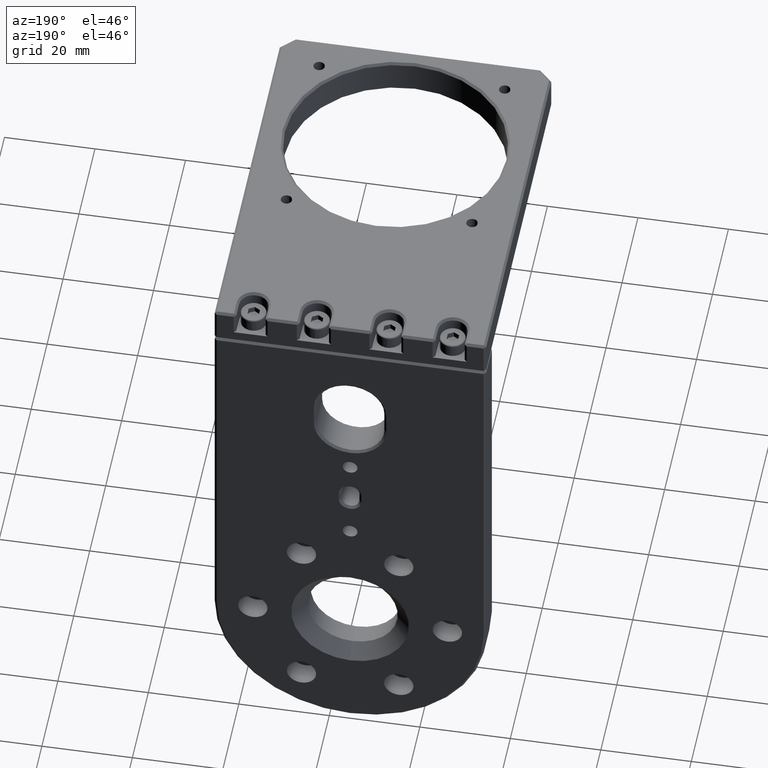
[diagram: clean part render]
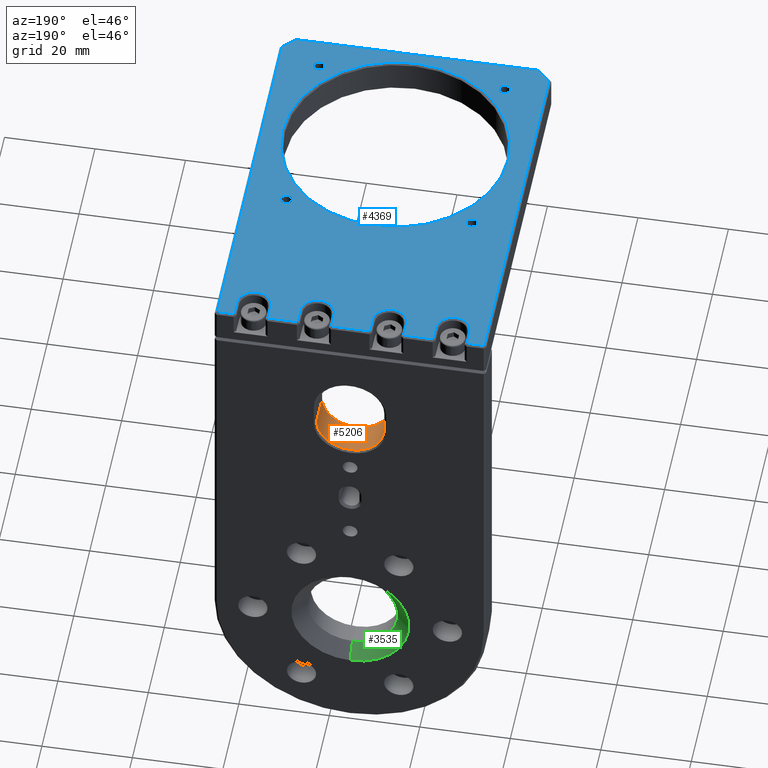
[diagram: same view with three faces highlighted in distinct colors, each labeled with its STEP entity id]
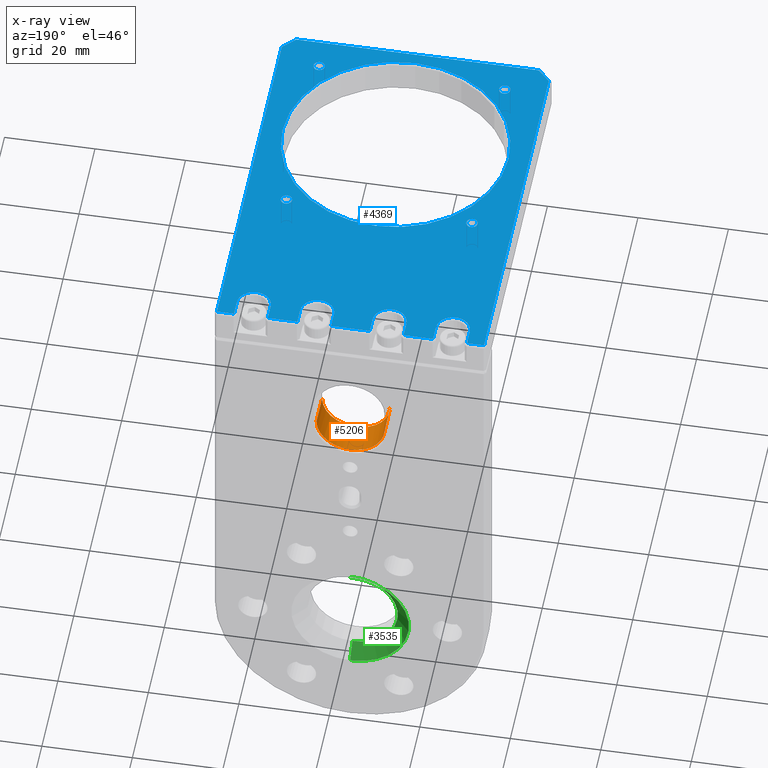
[diagram: x-ray of the same camera — body ghosted, the three highlighted faces saturated]
A machine part, auxiliary view with three faces highlighted in distinct colors.
The next image is the same camera in x-ray (body ghosted, the three faces saturated) — at least one of them is partly hidden behind the body in this view.
Their STEP definitions:

[orange] entity #5206 — the highlighted cylindrical surface (edge-blend (fillet) strip) has radius 7.5 mm, axis along (0, -1, -0).
#134 = CARTESIAN_POINT ( 'NONE',  ( 135.1860777088456018, 141.2181840001565831, 163.4764618752672050 ) ) ;
#247 = AXIS2_PLACEMENT_3D ( 'NONE', #6578, #3546, #3625 ) ;
#368 = ORIENTED_EDGE ( 'NONE', *, *, #411, .T. ) ;
#411 = EDGE_CURVE ( 'NONE', #4521, #592, #4626, .T. ) ;
#592 = VERTEX_POINT ( 'NONE', #2490 ) ;
#736 = AXIS2_PLACEMENT_3D ( 'NONE', #134, #3818, #3661 ) ;
#804 = CARTESIAN_POINT ( 'NONE',  ( 135.1860777088456018, 140.7181840001565263, 163.4764618752672050 ) ) ;
#1297 = CARTESIAN_POINT ( 'NONE',  ( 127.6860777088456018, 141.2181840001565547, 163.4764618752672902 ) ) ;
#1410 = DIRECTION ( 'NONE',  ( 3.491481338843133355E-15, -1.000000000000000000, -3.657132581846951845E-29 ) ) ;
#1940 = EDGE_CURVE ( 'NONE', #592, #6217, #3490, .T. ) ;
#2082 = ORIENTED_EDGE ( 'NONE', *, *, #1940, .T. ) ;
#2099 = DIRECTION ( 'NONE',  ( 3.491481338843133355E-15, -1.000000000000000000, -3.657132581846951845E-29 ) ) ;
#2121 = ORIENTED_EDGE ( 'NONE', *, *, #4046, .T. ) ;
#2490 = CARTESIAN_POINT ( 'NONE',  ( 135.1860777088455166, 140.7181840001565263, 155.9764618752672050 ) ) ;
#2656 = CARTESIAN_POINT ( 'NONE',  ( 142.6860777088456018, 141.2181840001566115, 163.4764618752671197 ) ) ;
#2698 = VECTOR ( 'NONE', #2099, 1000.000000000000000 ) ;
#2742 = DIRECTION ( 'NONE',  ( 1.110223024625155436E-14, 0.0000000000000000000, 1.000000000000000000 ) ) ;
#2870 = EDGE_CURVE ( 'NONE', #6217, #7251, #6235, .T. ) ;
#3429 = CARTESIAN_POINT ( 'NONE',  ( 142.6860777088456018, 133.7181840001566115, 163.4764618752671197 ) ) ;
#3490 = CIRCLE ( 'NONE', #4258, 7.500000000000007105 ) ;
#3546 = DIRECTION ( 'NONE',  ( 3.491481338843133355E-15, -1.000000000000000000, -3.657132581846951845E-29 ) ) ;
#3625 = DIRECTION ( 'NONE',  ( 1.110223024625155436E-14, 0.0000000000000000000, 1.000000000000000000 ) ) ;
#3661 = DIRECTION ( 'NONE',  ( 1.110223024625155436E-14, 0.0000000000000000000, 1.000000000000000000 ) ) ;
#3715 = AXIS2_PLACEMENT_3D ( 'NONE', #3930, #5678, #7528 ) ;
#3818 = DIRECTION ( 'NONE',  ( 3.491481338843133355E-15, -1.000000000000000000, -3.657132581846951845E-29 ) ) ;
#3919 = CARTESIAN_POINT ( 'NONE',  ( 127.6860777088456302, 133.7181840001565547, 163.4764618752672902 ) ) ;
#3930 = CARTESIAN_POINT ( 'NONE',  ( 135.1860777088456018, 140.7181840001565263, 163.4764618752672050 ) ) ;
#4046 = EDGE_CURVE ( 'NONE', #7251, #6625, #7189, .T. ) ;
#4112 = ORIENTED_EDGE ( 'NONE', *, *, #6902, .F. ) ;
#4258 = AXIS2_PLACEMENT_3D ( 'NONE', #804, #5799, #2742 ) ;
#4521 = VERTEX_POINT ( 'NONE', #6758 ) ;
#4523 = ORIENTED_EDGE ( 'NONE', *, *, #2870, .T. ) ;
#4626 = CIRCLE ( 'NONE', #3715, 7.500000000000007105 ) ;
#5146 = LINE ( 'NONE', #2656, #2698 ) ;
#5206 = ADVANCED_FACE ( 'NONE', ( #7499 ), #5643, .F. ) ;
#5643 = CYLINDRICAL_SURFACE ( 'NONE', #736, 7.500000000000007105 ) ;
#5678 = DIRECTION ( 'NONE',  ( -3.491481338843133355E-15, 1.000000000000000000, 3.657132581846951845E-29 ) ) ;
#5799 = DIRECTION ( 'NONE',  ( -3.491481338843133355E-15, 1.000000000000000000, 3.657132581846951845E-29 ) ) ;
#5847 = EDGE_LOOP ( 'NONE', ( #4523, #2121, #4112, #368, #2082 ) ) ;
#6217 = VERTEX_POINT ( 'NONE', #7519 ) ;
#6235 = LINE ( 'NONE', #1297, #7487 ) ;
#6578 = CARTESIAN_POINT ( 'NONE',  ( 135.1860777088456302, 133.7181840001565831, 163.4764618752672050 ) ) ;
#6625 = VERTEX_POINT ( 'NONE', #3429 ) ;
#6758 = CARTESIAN_POINT ( 'NONE',  ( 142.6860777088456018, 140.7181840001565547, 163.4764618752671197 ) ) ;
#6902 = EDGE_CURVE ( 'NONE', #4521, #6625, #5146, .T. ) ;
#7189 = CIRCLE ( 'NONE', #247, 7.500000000000007105 ) ;
#7251 = VERTEX_POINT ( 'NONE', #3919 ) ;
#7487 = VECTOR ( 'NONE', #1410, 1000.000000000000000 ) ;
#7499 = FACE_OUTER_BOUND ( 'NONE', #5847, .T. ) ;
#7519 = CARTESIAN_POINT ( 'NONE',  ( 127.6860777088456018, 140.7181840001564979, 163.4764618752672902 ) ) ;
#7528 = DIRECTION ( 'NONE',  ( 1.110223024625155436E-14, 0.0000000000000000000, 1.000000000000000000 ) ) ;

[blue] entity #4369 — the highlighted planar face has unit normal (0, 0, -1).
#13 = EDGE_CURVE ( 'NONE', #2300, #1599, #512, .T. ) ;
#84 = VERTEX_POINT ( 'NONE', #5887 ) ;
#91 = ORIENTED_EDGE ( 'NONE', *, *, #6144, .T. ) ;
#220 = CARTESIAN_POINT ( 'NONE',  ( 113.4299810544346201, 63.71208734574615562, 193.9764618752686545 ) ) ;
#232 = VERTEX_POINT ( 'NONE', #7287 ) ;
#243 = DIRECTION ( 'NONE',  ( -0.0000000000000000000, -0.0000000000000000000, 1.000000000000000000 ) ) ;
#251 = CARTESIAN_POINT ( 'NONE',  ( 114.6799810544345206, 104.7242806545659022, 193.9764618752686545 ) ) ;
#271 = EDGE_LOOP ( 'NONE', ( #7745, #6990 ) ) ;
#285 = CARTESIAN_POINT ( 'NONE',  ( 127.1860777088444365, 137.2181840001561000, 193.9764618752686545 ) ) ;
#294 = DIRECTION ( 'NONE',  ( 1.000000000000000000, 0.0000000000000000000, 0.0000000000000000000 ) ) ;
#313 = CARTESIAN_POINT ( 'NONE',  ( 109.4360777088444365, 140.7181840001560715, 193.9764618752686545 ) ) ;
#331 = VERTEX_POINT ( 'NONE', #5103 ) ;
#389 = AXIS2_PLACEMENT_3D ( 'NONE', #4611, #3882, #5222 ) ;
#406 = CARTESIAN_POINT ( 'NONE',  ( 135.1860777088444365, 98.71818400015608574, 193.9764618752686545 ) ) ;
#408 = LINE ( 'NONE', #5432, #3083 ) ;
#421 = AXIS2_PLACEMENT_3D ( 'NONE', #5757, #4428, #2709 ) ;
#512 = CIRCLE ( 'NONE', #4226, 1.249999999999987121 ) ;
#532 = CARTESIAN_POINT ( 'NONE',  ( 161.9789709276578549, 56.71818400015609285, 193.9764618752686545 ) ) ;
#556 = VECTOR ( 'NONE', #6757, 1000.000000000000000 ) ;
#558 = DIRECTION ( 'NONE',  ( -1.000000000000000000, 0.0000000000000000000, 0.0000000000000000000 ) ) ;
#571 = EDGE_CURVE ( 'NONE', #2174, #796, #3849, .T. ) ;
#596 = CARTESIAN_POINT ( 'NONE',  ( 116.9360777088444223, 98.71818400015608574, 193.9764618752686545 ) ) ;
#602 = EDGE_LOOP ( 'NONE', ( #2458, #2000 ) ) ;
#618 = LINE ( 'NONE', #2511, #6010 ) ;
#660 = LINE ( 'NONE', #3107, #3048 ) ;
#668 = ORIENTED_EDGE ( 'NONE', *, *, #2808, .T. ) ;
#718 = CARTESIAN_POINT ( 'NONE',  ( 139.4360777088444081, 140.7181840001560715, 193.9764618752686545 ) ) ;
#796 = VERTEX_POINT ( 'NONE', #2368 ) ;
#843 = ORIENTED_EDGE ( 'NONE', *, *, #7199, .T. ) ;
#877 = AXIS2_PLACEMENT_3D ( 'NONE', #5740, #3801, #4448 ) ;
#881 = CARTESIAN_POINT ( 'NONE',  ( 164.8325243182511599, 59.57173739074936947, 193.9764618752686545 ) ) ;
#892 = VERTEX_POINT ( 'NONE', #7382 ) ;
#996 = DIRECTION ( 'NONE',  ( -0.0000000000000000000, -0.0000000000000000000, 1.000000000000000000 ) ) ;
#1006 = FACE_BOUND ( 'NONE', #5197, .T. ) ;
#1133 = LINE ( 'NONE', #1660, #6872 ) ;
#1138 = ORIENTED_EDGE ( 'NONE', *, *, #3012, .T. ) ;
#1160 = VERTEX_POINT ( 'NONE', #1507 ) ;
#1269 = VECTOR ( 'NONE', #3916, 1000.000000000000000 ) ;
#1289 = CARTESIAN_POINT ( 'NONE',  ( 135.1860777088444365, 140.7181840001560715, 193.9764618752686545 ) ) ;
#1314 = ORIENTED_EDGE ( 'NONE', *, *, #5021, .T. ) ;
#1333 = ORIENTED_EDGE ( 'NONE', *, *, #1569, .T. ) ;
#1342 = EDGE_LOOP ( 'NONE', ( #4061, #4686 ) ) ;
#1418 = ORIENTED_EDGE ( 'NONE', *, *, #3211, .T. ) ;
#1423 = DIRECTION ( 'NONE',  ( -0.0000000000000000000, -0.0000000000000000000, 1.000000000000000000 ) ) ;
#1437 = CARTESIAN_POINT ( 'NONE',  ( 156.9421743632543667, 63.71208734574625510, 193.9764618752686545 ) ) ;
#1507 = CARTESIAN_POINT ( 'NONE',  ( 146.9360777088444365, 140.7181840001560715, 193.9764618752686545 ) ) ;
#1517 = CARTESIAN_POINT ( 'NONE',  ( 105.6860777088444507, 59.42529078134266740, 193.9764618752686545 ) ) ;
#1524 = VECTOR ( 'NONE', #5784, 1000.000000000000000 ) ;
#1569 = EDGE_CURVE ( 'NONE', #6057, #2536, #1133, .T. ) ;
#1570 = ORIENTED_EDGE ( 'NONE', *, *, #2622, .T. ) ;
#1586 = DIRECTION ( 'NONE',  ( -0.0000000000000000000, -0.0000000000000000000, 1.000000000000000000 ) ) ;
#1588 = VECTOR ( 'NONE', #5429, 1000.000000000000000 ) ;
#1599 = VERTEX_POINT ( 'NONE', #4751 ) ;
#1613 = FACE_BOUND ( 'NONE', #4813, .T. ) ;
#1617 = VERTEX_POINT ( 'NONE', #532 ) ;
#1660 = CARTESIAN_POINT ( 'NONE',  ( 135.1860777088444365, 140.7181840001560715, 193.9764618752686545 ) ) ;
#1712 = VECTOR ( 'NONE', #7323, 1000.000000000000000 ) ;
#1772 = LINE ( 'NONE', #2420, #1712 ) ;
#1795 = EDGE_CURVE ( 'NONE', #5462, #3796, #1977, .T. ) ;
#1806 = VECTOR ( 'NONE', #3725, 1000.000000000000000 ) ;
#1837 = VERTEX_POINT ( 'NONE', #5147 ) ;
#1841 = EDGE_CURVE ( 'NONE', #5848, #1837, #5808, .T. ) ;
#1849 = CIRCLE ( 'NONE', #4015, 3.750000000000003553 ) ;
#1851 = CARTESIAN_POINT ( 'NONE',  ( 160.9360777088444365, 98.71818400015608574, 193.9764618752686545 ) ) ;
#1953 = AXIS2_PLACEMENT_3D ( 'NONE', #7041, #5063, #2013 ) ;
#1964 = CIRCLE ( 'NONE', #7743, 1.249999999999973355 ) ;
#1976 = LINE ( 'NONE', #7964, #5369 ) ;
#1977 = LINE ( 'NONE', #3102, #5674 ) ;
#2000 = ORIENTED_EDGE ( 'NONE', *, *, #1841, .F. ) ;
#2013 = DIRECTION ( 'NONE',  ( 1.000000000000000000, 0.0000000000000000000, 0.0000000000000000000 ) ) ;
#2044 = VECTOR ( 'NONE', #2991, 1000.000000000000000 ) ;
#2057 = DIRECTION ( 'NONE',  ( 1.000000000000000000, 0.0000000000000000000, 0.0000000000000000000 ) ) ;
#2168 = CARTESIAN_POINT ( 'NONE',  ( 155.6921743632543951, 63.71208734574625510, 193.9764618752686545 ) ) ;
#2174 = VERTEX_POINT ( 'NONE', #1437 ) ;
#2192 = CARTESIAN_POINT ( 'NONE',  ( 164.6860777088444081, 140.7181840001560715, 193.9764618752686545 ) ) ;
#2222 = DIRECTION ( 'NONE',  ( 0.7071067811865459074, -0.7071067811865491270, 0.0000000000000000000 ) ) ;
#2240 = CARTESIAN_POINT ( 'NONE',  ( 123.4360777088444365, 140.7181840001560715, 193.9764618752686545 ) ) ;
#2257 = DIRECTION ( 'NONE',  ( 0.0000000000000000000, 0.0000000000000000000, -1.000000000000000000 ) ) ;
#2262 = VERTEX_POINT ( 'NONE', #313 ) ;
#2300 = VERTEX_POINT ( 'NONE', #4225 ) ;
#2301 = ORIENTED_EDGE ( 'NONE', *, *, #5991, .T. ) ;
#2368 = CARTESIAN_POINT ( 'NONE',  ( 154.4421743632544235, 63.71208734574625510, 193.9764618752686545 ) ) ;
#2420 = CARTESIAN_POINT ( 'NONE',  ( 130.9360777088444365, 98.71818400015608574, 193.9764618752686545 ) ) ;
#2425 = AXIS2_PLACEMENT_3D ( 'NONE', #2168, #996, #2922 ) ;
#2458 = ORIENTED_EDGE ( 'NONE', *, *, #2673, .F. ) ;
#2511 = CARTESIAN_POINT ( 'NONE',  ( 146.9360777088444365, 98.71818400015608574, 193.9764618752686545 ) ) ;
#2536 = VERTEX_POINT ( 'NONE', #6893 ) ;
#2541 = EDGE_CURVE ( 'NONE', #7703, #232, #7737, .T. ) ;
#2579 = DIRECTION ( 'NONE',  ( 0.0000000000000000000, -1.000000000000000000, 0.0000000000000000000 ) ) ;
#2617 = DIRECTION ( 'NONE',  ( -1.000000000000000000, 0.0000000000000000000, 0.0000000000000000000 ) ) ;
#2622 = EDGE_CURVE ( 'NONE', #2760, #6057, #4587, .T. ) ;
#2658 = CARTESIAN_POINT ( 'NONE',  ( 114.6799810544346059, 63.71208734574615562, 193.9764618752686545 ) ) ;
#2665 = DIRECTION ( 'NONE',  ( 1.000000000000000000, 0.0000000000000000000, 0.0000000000000000000 ) ) ;
#2673 = EDGE_CURVE ( 'NONE', #1837, #5848, #1964, .T. ) ;
#2694 = ORIENTED_EDGE ( 'NONE', *, *, #5067, .T. ) ;
#2709 = DIRECTION ( 'NONE',  ( 1.000000000000000000, 0.0000000000000000000, 0.0000000000000000000 ) ) ;
#2716 = ORIENTED_EDGE ( 'NONE', *, *, #5321, .T. ) ;
#2760 = VERTEX_POINT ( 'NONE', #3022 ) ;
#2799 = AXIS2_PLACEMENT_3D ( 'NONE', #406, #2257, #4699 ) ;
#2808 = EDGE_CURVE ( 'NONE', #2536, #331, #1772, .T. ) ;
#2838 = VERTEX_POINT ( 'NONE', #4866 ) ;
#2894 = CIRCLE ( 'NONE', #3910, 3.750000000000003553 ) ;
#2914 = CARTESIAN_POINT ( 'NONE',  ( 116.9360777088444223, 137.2181840001561000, 193.9764618752686545 ) ) ;
#2922 = DIRECTION ( 'NONE',  ( 1.000000000000000000, 0.0000000000000000000, 0.0000000000000000000 ) ) ;
#2932 = CARTESIAN_POINT ( 'NONE',  ( 135.1860777088444365, 140.7181840001560715, 193.9764618752686545 ) ) ;
#2967 = CARTESIAN_POINT ( 'NONE',  ( 135.1860777088444365, 84.21818400015608574, 193.9764618752686545 ) ) ;
#2991 = DIRECTION ( 'NONE',  ( 1.000000000000000000, 0.0000000000000000000, 0.0000000000000000000 ) ) ;
#3012 = EDGE_CURVE ( 'NONE', #1617, #892, #4618, .T. ) ;
#3022 = CARTESIAN_POINT ( 'NONE',  ( 139.4360777088444081, 137.2181840001561000, 193.9764618752686545 ) ) ;
#3023 = AXIS2_PLACEMENT_3D ( 'NONE', #2967, #5579, #3079 ) ;
#3048 = VECTOR ( 'NONE', #5567, 1000.000000000000000 ) ;
#3059 = AXIS2_PLACEMENT_3D ( 'NONE', #2658, #243, #2057 ) ;
#3069 = DIRECTION ( 'NONE',  ( -8.673617379884058152E-16, 1.000000000000000000, 0.0000000000000000000 ) ) ;
#3079 = DIRECTION ( 'NONE',  ( -1.000000000000000000, 0.0000000000000000000, 0.0000000000000000000 ) ) ;
#3083 = VECTOR ( 'NONE', #2222, 1000.000000000000114 ) ;
#3102 = CARTESIAN_POINT ( 'NONE',  ( 135.1860777088444365, 140.7181840001560715, 193.9764618752686545 ) ) ;
#3107 = CARTESIAN_POINT ( 'NONE',  ( 135.1860777088444365, 140.7181840001560715, 193.9764618752686545 ) ) ;
#3108 = DIRECTION ( 'NONE',  ( -4.336808689942029076E-16, -1.000000000000000000, 0.0000000000000000000 ) ) ;
#3127 = ORIENTED_EDGE ( 'NONE', *, *, #5621, .T. ) ;
#3204 = LINE ( 'NONE', #3318, #1524 ) ;
#3211 = EDGE_CURVE ( 'NONE', #3796, #3553, #5466, .T. ) ;
#3224 = ORIENTED_EDGE ( 'NONE', *, *, #5232, .T. ) ;
#3249 = EDGE_CURVE ( 'NONE', #3553, #5315, #1849, .T. ) ;
#3269 = EDGE_CURVE ( 'NONE', #7058, #7885, #7352, .T. ) ;
#3285 = ORIENTED_EDGE ( 'NONE', *, *, #5813, .T. ) ;
#3310 = VERTEX_POINT ( 'NONE', #3763 ) ;
#3318 = CARTESIAN_POINT ( 'NONE',  ( 123.4360777088444365, 98.71818400015608574, 193.9764618752686545 ) ) ;
#3330 = DIRECTION ( 'NONE',  ( 0.0000000000000000000, 0.0000000000000000000, -1.000000000000000000 ) ) ;
#3339 = CARTESIAN_POINT ( 'NONE',  ( 155.6921743632542814, 104.7242806545660159, 193.9764618752686545 ) ) ;
#3341 = CARTESIAN_POINT ( 'NONE',  ( 105.6860777088444507, 140.7181840001560715, 193.9764618752686545 ) ) ;
#3398 = ORIENTED_EDGE ( 'NONE', *, *, #1795, .T. ) ;
#3463 = ORIENTED_EDGE ( 'NONE', *, *, #4433, .T. ) ;
#3492 = FACE_BOUND ( 'NONE', #602, .T. ) ;
#3506 = DIRECTION ( 'NONE',  ( -1.000000000000000000, 0.0000000000000000000, 0.0000000000000000000 ) ) ;
#3553 = VERTEX_POINT ( 'NONE', #4047 ) ;
#3609 = DIRECTION ( 'NONE',  ( 0.0000000000000000000, 0.0000000000000000000, -1.000000000000000000 ) ) ;
#3647 = DIRECTION ( 'NONE',  ( -1.000000000000000000, 0.0000000000000000000, 0.0000000000000000000 ) ) ;
#3666 = ORIENTED_EDGE ( 'NONE', *, *, #13, .F. ) ;
#3725 = DIRECTION ( 'NONE',  ( -1.000000000000000000, 0.0000000000000000000, 0.0000000000000000000 ) ) ;
#3763 = CARTESIAN_POINT ( 'NONE',  ( 109.4360777088444365, 137.2181840001561000, 193.9764618752686545 ) ) ;
#3796 = VERTEX_POINT ( 'NONE', #7464 ) ;
#3801 = DIRECTION ( 'NONE',  ( 0.0000000000000000000, 0.0000000000000000000, -1.000000000000000000 ) ) ;
#3811 = CIRCLE ( 'NONE', #4590, 1.249999999999987121 ) ;
#3825 = CIRCLE ( 'NONE', #3059, 1.249999999999987121 ) ;
#3846 = CIRCLE ( 'NONE', #389, 3.750000000000003553 ) ;
#3849 = CIRCLE ( 'NONE', #5786, 1.249999999999973355 ) ;
#3882 = DIRECTION ( 'NONE',  ( 0.0000000000000000000, 0.0000000000000000000, -1.000000000000000000 ) ) ;
#3910 = AXIS2_PLACEMENT_3D ( 'NONE', #7396, #7354, #5550 ) ;
#3912 = ORIENTED_EDGE ( 'NONE', *, *, #5421, .F. ) ;
#3916 = DIRECTION ( 'NONE',  ( -8.673617379884058152E-16, 1.000000000000000000, 0.0000000000000000000 ) ) ;
#3960 = LINE ( 'NONE', #6615, #2044 ) ;
#4015 = AXIS2_PLACEMENT_3D ( 'NONE', #4208, #3609, #558 ) ;
#4047 = CARTESIAN_POINT ( 'NONE',  ( 160.9360777088444365, 137.2181840001561000, 193.9764618752686545 ) ) ;
#4061 = ORIENTED_EDGE ( 'NONE', *, *, #4586, .T. ) ;
#4179 = VECTOR ( 'NONE', #5741, 1000.000000000000000 ) ;
#4208 = CARTESIAN_POINT ( 'NONE',  ( 157.1860777088444365, 137.2181840001561000, 193.9764618752686545 ) ) ;
#4225 = CARTESIAN_POINT ( 'NONE',  ( 113.4299810544345348, 104.7242806545659022, 193.9764618752686545 ) ) ;
#4226 = AXIS2_PLACEMENT_3D ( 'NONE', #4472, #1423, #7575 ) ;
#4241 = EDGE_CURVE ( 'NONE', #1160, #84, #618, .T. ) ;
#4271 = CARTESIAN_POINT ( 'NONE',  ( 109.4360777088444792, 98.71818400015605732, 193.9764618752686545 ) ) ;
#4369 = ADVANCED_FACE ( 'NONE', ( #4738, #7122, #1613, #3492, #6518, #1006 ), #7203, .F. ) ;
#4374 = CARTESIAN_POINT ( 'NONE',  ( 160.1860777088444365, 84.21818400015608574, 193.9764618752686545 ) ) ;
#4422 = DIRECTION ( 'NONE',  ( -1.000000000000000000, 0.0000000000000000000, 0.0000000000000000000 ) ) ;
#4428 = DIRECTION ( 'NONE',  ( -0.0000000000000000000, -0.0000000000000000000, 1.000000000000000000 ) ) ;
#4433 = EDGE_CURVE ( 'NONE', #7330, #1160, #7277, .T. ) ;
#4448 = DIRECTION ( 'NONE',  ( -1.000000000000000000, 0.0000000000000000000, 0.0000000000000000000 ) ) ;
#4472 = CARTESIAN_POINT ( 'NONE',  ( 114.6799810544345206, 104.7242806545659022, 193.9764618752686545 ) ) ;
#4492 = CARTESIAN_POINT ( 'NONE',  ( 164.6860777088444081, 98.71818400015608574, 193.9764618752686545 ) ) ;
#4525 = VECTOR ( 'NONE', #7649, 1000.000000000000000 ) ;
#4586 = EDGE_CURVE ( 'NONE', #7146, #2838, #4726, .T. ) ;
#4587 = LINE ( 'NONE', #5198, #4525 ) ;
#4590 = AXIS2_PLACEMENT_3D ( 'NONE', #251, #1586, #2665 ) ;
#4611 = CARTESIAN_POINT ( 'NONE',  ( 113.1860777088444365, 137.2181840001561000, 193.9764618752686545 ) ) ;
#4618 = LINE ( 'NONE', #881, #7750 ) ;
#4686 = ORIENTED_EDGE ( 'NONE', *, *, #6404, .T. ) ;
#4699 = DIRECTION ( 'NONE',  ( -1.000000000000000000, 0.0000000000000000000, -0.0000000000000000000 ) ) ;
#4726 = CIRCLE ( 'NONE', #877, 24.99999999999999289 ) ;
#4738 = FACE_BOUND ( 'NONE', #1342, .T. ) ;
#4751 = CARTESIAN_POINT ( 'NONE',  ( 115.9299810544345206, 104.7242806545659022, 193.9764618752686545 ) ) ;
#4813 = EDGE_LOOP ( 'NONE', ( #3912, #3666 ) ) ;
#4846 = CARTESIAN_POINT ( 'NONE',  ( 123.4360777088444365, 137.2181840001561000, 193.9764618752686545 ) ) ;
#4854 = AXIS2_PLACEMENT_3D ( 'NONE', #285, #3330, #2617 ) ;
#4866 = CARTESIAN_POINT ( 'NONE',  ( 110.1860777088444507, 84.21818400015608574, 193.9764618752686545 ) ) ;
#4886 = EDGE_CURVE ( 'NONE', #232, #7703, #3825, .T. ) ;
#4901 = DIRECTION ( 'NONE',  ( -0.0000000000000000000, -0.0000000000000000000, 1.000000000000000000 ) ) ;
#4959 = VERTEX_POINT ( 'NONE', #6307 ) ;
#5021 = EDGE_CURVE ( 'NONE', #5315, #7330, #7547, .T. ) ;
#5063 = DIRECTION ( 'NONE',  ( -0.0000000000000000000, -0.0000000000000000000, 1.000000000000000000 ) ) ;
#5067 = EDGE_CURVE ( 'NONE', #6392, #6659, #3204, .T. ) ;
#5103 = CARTESIAN_POINT ( 'NONE',  ( 130.9360777088444365, 137.2181840001561000, 193.9764618752686545 ) ) ;
#5147 = CARTESIAN_POINT ( 'NONE',  ( 156.9421743632542530, 104.7242806545660159, 193.9764618752686545 ) ) ;
#5173 = VERTEX_POINT ( 'NONE', #1517 ) ;
#5183 = EDGE_CURVE ( 'NONE', #4959, #1617, #3960, .T. ) ;
#5197 = EDGE_LOOP ( 'NONE', ( #5974, #5318 ) ) ;
#5198 = CARTESIAN_POINT ( 'NONE',  ( 139.4360777088444365, 98.71818400015608574, 193.9764618752686545 ) ) ;
#5215 = ORIENTED_EDGE ( 'NONE', *, *, #4241, .T. ) ;
#5222 = DIRECTION ( 'NONE',  ( -1.000000000000000000, 0.0000000000000000000, 0.0000000000000000000 ) ) ;
#5232 = EDGE_CURVE ( 'NONE', #3310, #2262, #6819, .T. ) ;
#5315 = VERTEX_POINT ( 'NONE', #6168 ) ;
#5318 = ORIENTED_EDGE ( 'NONE', *, *, #2541, .F. ) ;
#5321 = EDGE_CURVE ( 'NONE', #6659, #7058, #660, .T. ) ;
#5369 = VECTOR ( 'NONE', #2579, 1000.000000000000000 ) ;
#5421 = EDGE_CURVE ( 'NONE', #1599, #2300, #3811, .T. ) ;
#5429 = DIRECTION ( 'NONE',  ( 0.0000000000000000000, -1.000000000000000000, 0.0000000000000000000 ) ) ;
#5432 = CARTESIAN_POINT ( 'NONE',  ( 108.5396310994377274, 56.57173739074936947, 193.9764618752686545 ) ) ;
#5435 = VERTEX_POINT ( 'NONE', #3341 ) ;
#5462 = VERTEX_POINT ( 'NONE', #2192 ) ;
#5463 = CIRCLE ( 'NONE', #3023, 24.99999999999999289 ) ;
#5466 = LINE ( 'NONE', #1851, #1588 ) ;
#5493 = EDGE_LOOP ( 'NONE', ( #7086, #3224, #843, #3127, #6950, #5955, #1138, #91, #3398, #1418, #7025, #1314, #3463, #5215, #2301, #1570, #1333, #668, #3285, #2694, #2716, #7425 ) ) ;
#5503 = VECTOR ( 'NONE', #3647, 1000.000000000000000 ) ;
#5550 = DIRECTION ( 'NONE',  ( -1.000000000000000000, 0.0000000000000000000, 0.0000000000000000000 ) ) ;
#5567 = DIRECTION ( 'NONE',  ( -1.000000000000000000, 0.0000000000000000000, 0.0000000000000000000 ) ) ;
#5579 = DIRECTION ( 'NONE',  ( 0.0000000000000000000, 0.0000000000000000000, -1.000000000000000000 ) ) ;
#5621 = EDGE_CURVE ( 'NONE', #5435, #5173, #1976, .T. ) ;
#5674 = VECTOR ( 'NONE', #4422, 1000.000000000000000 ) ;
#5740 = CARTESIAN_POINT ( 'NONE',  ( 135.1860777088444365, 84.21818400015608574, 193.9764618752686545 ) ) ;
#5741 = DIRECTION ( 'NONE',  ( 0.0000000000000000000, 1.000000000000000000, 0.0000000000000000000 ) ) ;
#5757 = CARTESIAN_POINT ( 'NONE',  ( 114.6799810544346059, 63.71208734574615562, 193.9764618752686545 ) ) ;
#5784 = DIRECTION ( 'NONE',  ( 0.0000000000000000000, 1.000000000000000000, 0.0000000000000000000 ) ) ;
#5786 = AXIS2_PLACEMENT_3D ( 'NONE', #6110, #4901, #6675 ) ;
#5805 = DIRECTION ( 'NONE',  ( -0.0000000000000000000, -0.0000000000000000000, 1.000000000000000000 ) ) ;
#5808 = CIRCLE ( 'NONE', #1953, 1.249999999999973355 ) ;
#5813 = EDGE_CURVE ( 'NONE', #331, #6392, #6664, .T. ) ;
#5848 = VERTEX_POINT ( 'NONE', #6485 ) ;
#5887 = CARTESIAN_POINT ( 'NONE',  ( 146.9360777088444365, 137.2181840001561000, 193.9764618752686545 ) ) ;
#5909 = DIRECTION ( 'NONE',  ( 0.7071067811865491270, 0.7071067811865459074, 0.0000000000000000000 ) ) ;
#5955 = ORIENTED_EDGE ( 'NONE', *, *, #5183, .T. ) ;
#5974 = ORIENTED_EDGE ( 'NONE', *, *, #4886, .F. ) ;
#5991 = EDGE_CURVE ( 'NONE', #84, #2760, #2894, .T. ) ;
#6010 = VECTOR ( 'NONE', #3108, 1000.000000000000000 ) ;
#6057 = VERTEX_POINT ( 'NONE', #718 ) ;
#6110 = CARTESIAN_POINT ( 'NONE',  ( 155.6921743632543951, 63.71208734574625510, 193.9764618752686545 ) ) ;
#6116 = LINE ( 'NONE', #1289, #1806 ) ;
#6144 = EDGE_CURVE ( 'NONE', #892, #5462, #6390, .T. ) ;
#6168 = CARTESIAN_POINT ( 'NONE',  ( 153.4360777088444365, 137.2181840001561000, 193.9764618752686545 ) ) ;
#6252 = EDGE_CURVE ( 'NONE', #796, #2174, #7814, .T. ) ;
#6307 = CARTESIAN_POINT ( 'NONE',  ( 108.3931844900310040, 56.71818400015609285, 193.9764618752686545 ) ) ;
#6312 = CARTESIAN_POINT ( 'NONE',  ( 153.4360777088444081, 140.7181840001560715, 193.9764618752686545 ) ) ;
#6349 = CARTESIAN_POINT ( 'NONE',  ( 153.4360777088444650, 98.71818400015609996, 193.9764618752686545 ) ) ;
#6390 = LINE ( 'NONE', #4492, #4179 ) ;
#6392 = VERTEX_POINT ( 'NONE', #4846 ) ;
#6404 = EDGE_CURVE ( 'NONE', #2838, #7146, #5463, .T. ) ;
#6485 = CARTESIAN_POINT ( 'NONE',  ( 154.4421743632543098, 104.7242806545660159, 193.9764618752686545 ) ) ;
#6518 = FACE_BOUND ( 'NONE', #271, .T. ) ;
#6615 = CARTESIAN_POINT ( 'NONE',  ( 135.1860777088444365, 56.71818400015609285, 193.9764618752686545 ) ) ;
#6659 = VERTEX_POINT ( 'NONE', #2240 ) ;
#6664 = CIRCLE ( 'NONE', #4854, 3.750000000000003553 ) ;
#6675 = DIRECTION ( 'NONE',  ( 1.000000000000000000, 0.0000000000000000000, 0.0000000000000000000 ) ) ;
#6757 = DIRECTION ( 'NONE',  ( 0.0000000000000000000, -1.000000000000000000, 0.0000000000000000000 ) ) ;
#6819 = LINE ( 'NONE', #4271, #7926 ) ;
#6872 = VECTOR ( 'NONE', #3506, 1000.000000000000000 ) ;
#6893 = CARTESIAN_POINT ( 'NONE',  ( 130.9360777088444365, 140.7181840001560715, 193.9764618752686545 ) ) ;
#6950 = ORIENTED_EDGE ( 'NONE', *, *, #7045, .T. ) ;
#6990 = ORIENTED_EDGE ( 'NONE', *, *, #6252, .F. ) ;
#7025 = ORIENTED_EDGE ( 'NONE', *, *, #3249, .T. ) ;
#7041 = CARTESIAN_POINT ( 'NONE',  ( 155.6921743632542814, 104.7242806545660159, 193.9764618752686545 ) ) ;
#7045 = EDGE_CURVE ( 'NONE', #5173, #4959, #408, .T. ) ;
#7058 = VERTEX_POINT ( 'NONE', #7880 ) ;
#7086 = ORIENTED_EDGE ( 'NONE', *, *, #7243, .T. ) ;
#7122 = FACE_OUTER_BOUND ( 'NONE', #5493, .T. ) ;
#7146 = VERTEX_POINT ( 'NONE', #4374 ) ;
#7199 = EDGE_CURVE ( 'NONE', #2262, #5435, #6116, .T. ) ;
#7203 = PLANE ( 'NONE',  #2799 ) ;
#7243 = EDGE_CURVE ( 'NONE', #7885, #3310, #3846, .T. ) ;
#7277 = LINE ( 'NONE', #2932, #5503 ) ;
#7287 = CARTESIAN_POINT ( 'NONE',  ( 115.9299810544345917, 63.71208734574615562, 193.9764618752686545 ) ) ;
#7323 = DIRECTION ( 'NONE',  ( 0.0000000000000000000, -1.000000000000000000, 0.0000000000000000000 ) ) ;
#7330 = VERTEX_POINT ( 'NONE', #6312 ) ;
#7352 = LINE ( 'NONE', #596, #556 ) ;
#7354 = DIRECTION ( 'NONE',  ( 0.0000000000000000000, 0.0000000000000000000, -1.000000000000000000 ) ) ;
#7382 = CARTESIAN_POINT ( 'NONE',  ( 164.6860777088444081, 59.42529078134263898, 193.9764618752686545 ) ) ;
#7396 = CARTESIAN_POINT ( 'NONE',  ( 143.1860777088444365, 137.2181840001561000, 193.9764618752686545 ) ) ;
#7425 = ORIENTED_EDGE ( 'NONE', *, *, #3269, .T. ) ;
#7464 = CARTESIAN_POINT ( 'NONE',  ( 160.9360777088444365, 140.7181840001560715, 193.9764618752686545 ) ) ;
#7547 = LINE ( 'NONE', #6349, #1269 ) ;
#7575 = DIRECTION ( 'NONE',  ( 1.000000000000000000, 0.0000000000000000000, 0.0000000000000000000 ) ) ;
#7649 = DIRECTION ( 'NONE',  ( -6.505213034913043367E-16, 1.000000000000000000, 0.0000000000000000000 ) ) ;
#7703 = VERTEX_POINT ( 'NONE', #220 ) ;
#7737 = CIRCLE ( 'NONE', #421, 1.249999999999987121 ) ;
#7743 = AXIS2_PLACEMENT_3D ( 'NONE', #3339, #5805, #294 ) ;
#7745 = ORIENTED_EDGE ( 'NONE', *, *, #571, .F. ) ;
#7750 = VECTOR ( 'NONE', #5909, 1000.000000000000000 ) ;
#7814 = CIRCLE ( 'NONE', #2425, 1.249999999999973355 ) ;
#7880 = CARTESIAN_POINT ( 'NONE',  ( 116.9360777088444223, 140.7181840001560715, 193.9764618752686545 ) ) ;
#7885 = VERTEX_POINT ( 'NONE', #2914 ) ;
#7926 = VECTOR ( 'NONE', #3069, 1000.000000000000000 ) ;
#7964 = CARTESIAN_POINT ( 'NONE',  ( 105.6860777088444507, 98.71818400015608574, 193.9764618752686545 ) ) ;

[green] entity #3535 — the highlighted conical surface has half-angle 45 deg.
#266 = EDGE_CURVE ( 'NONE', #5154, #6734, #7366, .T. ) ;
#402 = CIRCLE ( 'NONE', #6569, 12.99999999999999822 ) ;
#435 = DIRECTION ( 'NONE',  ( -3.491481338843133355E-15, 1.000000000000000000, 3.657132581846951845E-29 ) ) ;
#534 = EDGE_LOOP ( 'NONE', ( #6081, #1834, #7136, #7165 ) ) ;
#613 = DIRECTION ( 'NONE',  ( 4.851104656540970586E-15, 0.7071067811865483499, 0.7071067811865466846 ) ) ;
#901 = EDGE_CURVE ( 'NONE', #6734, #916, #402, .T. ) ;
#916 = VERTEX_POINT ( 'NONE', #4361 ) ;
#1222 = VERTEX_POINT ( 'NONE', #3513 ) ;
#1340 = AXIS2_PLACEMENT_3D ( 'NONE', #5865, #7070, #4527 ) ;
#1357 = CARTESIAN_POINT ( 'NONE',  ( 135.1860777088449765, 141.2181840001565831, 103.4864618752671959 ) ) ;
#1416 = VECTOR ( 'NONE', #613, 1000.000000000000000 ) ;
#1638 = CARTESIAN_POINT ( 'NONE',  ( 135.1860777088449765, 138.2181840001565831, 103.4864618752671959 ) ) ;
#1723 = CONICAL_SURFACE ( 'NONE', #1340, 12.99999999999999822, 0.7853981633974471688 ) ;
#1834 = ORIENTED_EDGE ( 'NONE', *, *, #4744, .F. ) ;
#1956 = DIRECTION ( 'NONE',  ( 1.067522139062650592E-14, 0.0000000000000000000, 1.000000000000000000 ) ) ;
#2087 = FACE_OUTER_BOUND ( 'NONE', #534, .T. ) ;
#2428 = CARTESIAN_POINT ( 'NONE',  ( 135.1860777088451187, 141.2181840001565831, 116.4864618752671959 ) ) ;
#2609 = DIRECTION ( 'NONE',  ( -9.875400524329055064E-15, 0.7071067811865483499, -0.7071067811865466846 ) ) ;
#3131 = LINE ( 'NONE', #6995, #5111 ) ;
#3513 = CARTESIAN_POINT ( 'NONE',  ( 135.1860777088448913, 138.2181840001565831, 93.48646187526719586 ) ) ;
#3535 = ADVANCED_FACE ( 'NONE', ( #2087 ), #1723, .F. ) ;
#3917 = DIRECTION ( 'NONE',  ( 8.326672684688678786E-15, 0.0000000000000000000, 1.000000000000000000 ) ) ;
#4274 = CARTESIAN_POINT ( 'NONE',  ( 135.1860777088451187, 141.2181840001565831, 116.4864618752671959 ) ) ;
#4361 = CARTESIAN_POINT ( 'NONE',  ( 135.1860777088448344, 141.2181840001565831, 90.48646187526719586 ) ) ;
#4527 = DIRECTION ( 'NONE',  ( -1.067522139062650592E-14, 0.0000000000000000000, -1.000000000000000000 ) ) ;
#4604 = EDGE_CURVE ( 'NONE', #1222, #916, #3131, .T. ) ;
#4744 = EDGE_CURVE ( 'NONE', #1222, #5154, #6791, .T. ) ;
#5111 = VECTOR ( 'NONE', #2609, 1000.000000000000000 ) ;
#5154 = VERTEX_POINT ( 'NONE', #5485 ) ;
#5249 = AXIS2_PLACEMENT_3D ( 'NONE', #1638, #435, #3917 ) ;
#5485 = CARTESIAN_POINT ( 'NONE',  ( 135.1860777088450902, 138.2181840001565831, 113.4864618752671959 ) ) ;
#5865 = CARTESIAN_POINT ( 'NONE',  ( 135.1860777088449765, 141.2181840001565831, 103.4864618752671959 ) ) ;
#6081 = ORIENTED_EDGE ( 'NONE', *, *, #266, .F. ) ;
#6569 = AXIS2_PLACEMENT_3D ( 'NONE', #1357, #7508, #1956 ) ;
#6734 = VERTEX_POINT ( 'NONE', #4274 ) ;
#6791 = CIRCLE ( 'NONE', #5249, 9.999999999999994671 ) ;
#6995 = CARTESIAN_POINT ( 'NONE',  ( 135.1860777088448344, 141.2181840001565831, 90.48646187526719586 ) ) ;
#7070 = DIRECTION ( 'NONE',  ( -3.491481338843133355E-15, 1.000000000000000000, 3.657132581846951845E-29 ) ) ;
#7136 = ORIENTED_EDGE ( 'NONE', *, *, #4604, .T. ) ;
#7165 = ORIENTED_EDGE ( 'NONE', *, *, #901, .F. ) ;
#7366 = LINE ( 'NONE', #2428, #1416 ) ;
#7508 = DIRECTION ( 'NONE',  ( 3.491481338843133355E-15, -1.000000000000000000, -3.657132581846951845E-29 ) ) ;